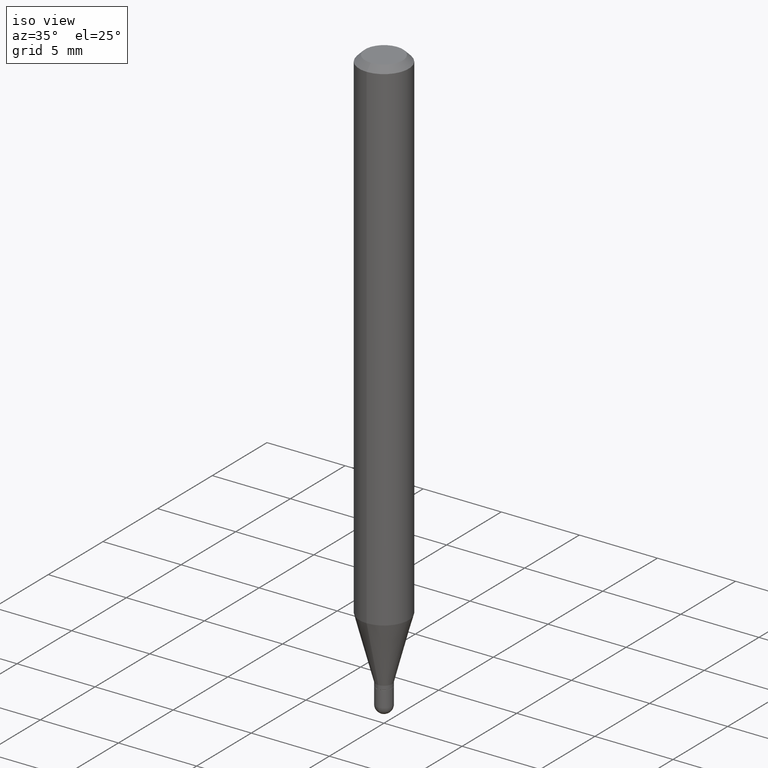
[diagram: clean part render]
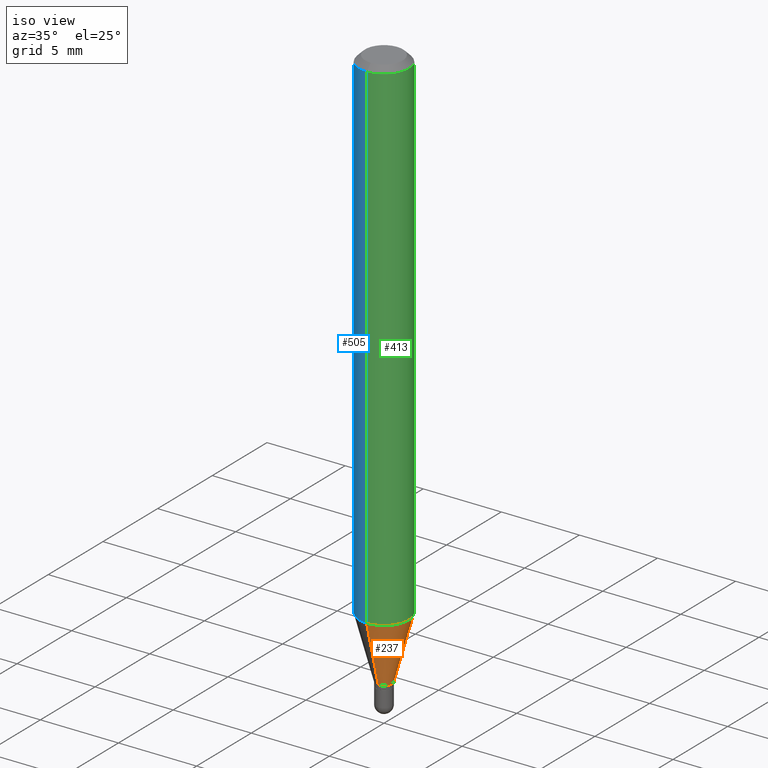
[diagram: same view with three faces highlighted in distinct colors, each labeled with its STEP entity id]
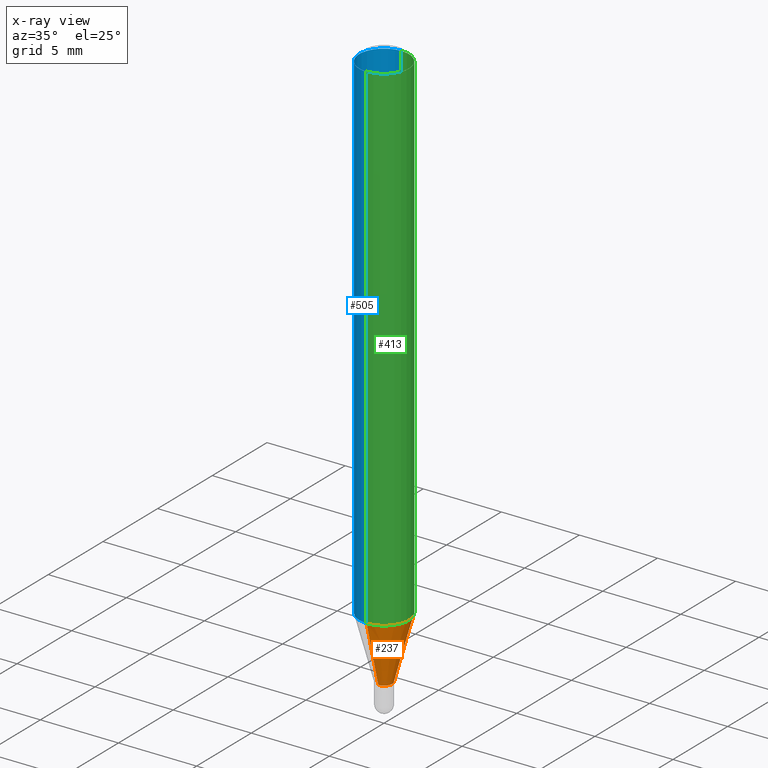
[diagram: x-ray of the same camera — body ghosted, the three highlighted faces saturated]
A machine part, iso view with three faces highlighted in distinct colors.
The next image is the same camera in x-ray (body ghosted, the three faces saturated) — at least one of them is partly hidden behind the body in this view.
Their STEP definitions:

[orange] entity #237 — the highlighted conical surface has half-angle 15 deg.
#3 = CARTESIAN_POINT ( 'NONE',  ( 3.491895928503127378E-29, -4.986169775435812878E-15, -1.428000000000000380 ) ) ;
#15 = VERTEX_POINT ( 'NONE', #297 ) ;
#43 = VECTOR ( 'NONE', #243, 39.37007874015748854 ) ;
#63 = EDGE_CURVE ( 'NONE', #15, #440, #329, .T. ) ;
#66 = EDGE_CURVE ( 'NONE', #96, #440, #439, .T. ) ;
#73 = CARTESIAN_POINT ( 'NONE',  ( 4.440892098500933817E-16, 0.06249999999999554523, -1.271253866082108219 ) ) ;
#96 = VERTEX_POINT ( 'NONE', #421 ) ;
#117 = CARTESIAN_POINT ( 'NONE',  ( 3.491895928503127378E-29, -4.986169775435812878E-15, -1.428000000000000380 ) ) ;
#124 = EDGE_LOOP ( 'NONE', ( #187, #269, #454, #361 ) ) ;
#142 = DIRECTION ( 'NONE',  ( 1.839019923739601499E-15, 0.2588190451025251249, 0.9659258262890670910 ) ) ;
#161 = VECTOR ( 'NONE', #142, 39.37007874015748854 ) ;
#184 = DIRECTION ( 'NONE',  ( -6.982962677686265133E-15, -1.000000000000000000, 0.000000000000000000 ) ) ;
#187 = ORIENTED_EDGE ( 'NONE', *, *, #253, .T. ) ;
#188 = AXIS2_PLACEMENT_3D ( 'NONE', #117, #429, #184 ) ;
#196 = CIRCLE ( 'NONE', #188, 0.02049999999999994188 ) ;
#226 = DIRECTION ( 'NONE',  ( -6.982962677686265133E-15, -1.000000000000000000, 0.000000000000000000 ) ) ;
#237 = ADVANCED_FACE ( 'NONE', ( #311 ), #277, .T. ) ;
#243 = DIRECTION ( 'NONE',  ( -1.807323732225331323E-15, -0.2588190451025183525, 0.9659258262890689783 ) ) ;
#253 = EDGE_CURVE ( 'NONE', #399, #15, #196, .T. ) ;
#266 = CARTESIAN_POINT ( 'NONE',  ( 3.108603780858524762E-29, -4.438856865521379751E-15, -1.271253866082107997 ) ) ;
#269 = ORIENTED_EDGE ( 'NONE', *, *, #63, .T. ) ;
#277 = CONICAL_SURFACE ( 'NONE', #455, 0.02049999999999994188, 0.2617993877991504625 ) ;
#295 = AXIS2_PLACEMENT_3D ( 'NONE', #266, #461, #468 ) ;
#297 = CARTESIAN_POINT ( 'NONE',  ( 2.948752353404744289E-16, 0.02049999999999495628, -1.428000000000000380 ) ) ;
#311 = FACE_OUTER_BOUND ( 'NONE', #124, .T. ) ;
#312 = CARTESIAN_POINT ( 'NONE',  ( -1.431507348925331187E-16, -0.02050000000000492748, -1.428000000000000380 ) ) ;
#317 = LINE ( 'NONE', #312, #43 ) ;
#329 = LINE ( 'NONE', #493, #161 ) ;
#361 = ORIENTED_EDGE ( 'NONE', *, *, #446, .F. ) ;
#399 = VERTEX_POINT ( 'NONE', #463 ) ;
#421 = CARTESIAN_POINT ( 'NONE',  ( -4.364351673553607559E-16, -0.06250000000000445477, -1.271253866082107775 ) ) ;
#429 = DIRECTION ( 'NONE',  ( -2.445305272061013346E-29, 3.491715529016674512E-15, 1.000000000000000000 ) ) ;
#439 = CIRCLE ( 'NONE', #295, 0.06250000000000000000 ) ;
#440 = VERTEX_POINT ( 'NONE', #73 ) ;
#442 = DIRECTION ( 'NONE',  ( -2.445305272061013346E-29, 3.491715529016674512E-15, 1.000000000000000000 ) ) ;
#446 = EDGE_CURVE ( 'NONE', #399, #96, #317, .T. ) ;
#454 = ORIENTED_EDGE ( 'NONE', *, *, #66, .F. ) ;
#455 = AXIS2_PLACEMENT_3D ( 'NONE', #3, #442, #226 ) ;
#461 = DIRECTION ( 'NONE',  ( -2.445305272061013346E-29, 3.491715529016674512E-15, 1.000000000000000000 ) ) ;
#463 = CARTESIAN_POINT ( 'NONE',  ( -1.431507348925331187E-16, -0.02050000000000492748, -1.428000000000000380 ) ) ;
#468 = DIRECTION ( 'NONE',  ( -6.982962677686265922E-15, -1.000000000000000000, 4.370956789862821150E-15 ) ) ;
#493 = CARTESIAN_POINT ( 'NONE',  ( 1.456612608308550076E-16, 0.02049999999999495628, -1.428000000000000380 ) ) ;

[blue] entity #505 — the highlighted cylindrical surface (edge-blend (fillet) strip) has radius 1.5875 mm, axis along (-0, 0, 1).
#11 = EDGE_CURVE ( 'NONE', #254, #180, #80, .T. ) ;
#21 = CARTESIAN_POINT ( 'NONE',  ( -4.364351673553912750E-16, -0.06250000000000005551, -0.01500000000000011047 ) ) ;
#23 = ORIENTED_EDGE ( 'NONE', *, *, #11, .F. ) ;
#33 = LINE ( 'NONE', #388, #453 ) ;
#35 = EDGE_CURVE ( 'NONE', #440, #254, #228, .T. ) ;
#57 = DIRECTION ( 'NONE',  ( -6.982962677686265922E-15, -1.000000000000000000, 3.483106191921935554E-15 ) ) ;
#59 = VECTOR ( 'NONE', #367, 39.37007874015748143 ) ;
#73 = CARTESIAN_POINT ( 'NONE',  ( 4.440892098500933817E-16, 0.06249999999999554523, -1.271253866082108219 ) ) ;
#74 = DIRECTION ( 'NONE',  ( -2.445305272061013346E-29, 3.491715529016674512E-15, 1.000000000000000000 ) ) ;
#80 = CIRCLE ( 'NONE', #343, 0.06250000000000000000 ) ;
#84 = ORIENTED_EDGE ( 'NONE', *, *, #182, .T. ) ;
#96 = VERTEX_POINT ( 'NONE', #421 ) ;
#104 = EDGE_LOOP ( 'NONE', ( #379, #84, #191, #23 ) ) ;
#132 = DIRECTION ( 'NONE',  ( -6.982962677686265922E-15, -1.000000000000000000, 4.370956789862821150E-15 ) ) ;
#180 = VERTEX_POINT ( 'NONE', #21 ) ;
#182 = EDGE_CURVE ( 'NONE', #440, #96, #437, .T. ) ;
#191 = ORIENTED_EDGE ( 'NONE', *, *, #395, .T. ) ;
#202 = FACE_OUTER_BOUND ( 'NONE', #104, .T. ) ;
#228 = LINE ( 'NONE', #416, #59 ) ;
#232 = DIRECTION ( 'NONE',  ( -2.445305272061013346E-29, 3.491715529016674512E-15, 1.000000000000000000 ) ) ;
#246 = DIRECTION ( 'NONE',  ( -6.982962677686265922E-15, -1.000000000000000000, 3.491715529016674512E-15 ) ) ;
#254 = VERTEX_POINT ( 'NONE', #263 ) ;
#263 = CARTESIAN_POINT ( 'NONE',  ( 4.440892098500938748E-16, 0.06249999999999995143, -0.01500000000000054588 ) ) ;
#304 = CYLINDRICAL_SURFACE ( 'NONE', #351, 0.06250000000000000000 ) ;
#343 = AXIS2_PLACEMENT_3D ( 'NONE', #378, #232, #57 ) ;
#351 = AXIS2_PLACEMENT_3D ( 'NONE', #511, #74, #246 ) ;
#367 = DIRECTION ( 'NONE',  ( -2.445305272061013346E-29, 3.491715529016674906E-15, 1.000000000000000000 ) ) ;
#378 = CARTESIAN_POINT ( 'NONE',  ( 3.667957908091600190E-31, -5.237573293525126621E-17, -0.01500000000000032904 ) ) ;
#379 = ORIENTED_EDGE ( 'NONE', *, *, #35, .F. ) ;
#382 = AXIS2_PLACEMENT_3D ( 'NONE', #402, #444, #132 ) ;
#388 = CARTESIAN_POINT ( 'NONE',  ( -4.364351673553916201E-16, -0.06250000000000000000, 2.182322205635421570E-16 ) ) ;
#395 = EDGE_CURVE ( 'NONE', #96, #180, #33, .T. ) ;
#402 = CARTESIAN_POINT ( 'NONE',  ( 3.108603780858524762E-29, -4.438856865521379751E-15, -1.271253866082107997 ) ) ;
#416 = CARTESIAN_POINT ( 'NONE',  ( 4.440892098500625669E-16, 0.06250000000000000000, -2.182322205635421570E-16 ) ) ;
#421 = CARTESIAN_POINT ( 'NONE',  ( -4.364351673553607559E-16, -0.06250000000000445477, -1.271253866082107775 ) ) ;
#437 = CIRCLE ( 'NONE', #382, 0.06250000000000000000 ) ;
#440 = VERTEX_POINT ( 'NONE', #73 ) ;
#444 = DIRECTION ( 'NONE',  ( -2.445305272061013346E-29, 3.491715529016674512E-15, 1.000000000000000000 ) ) ;
#453 = VECTOR ( 'NONE', #472, 39.37007874015748143 ) ;
#472 = DIRECTION ( 'NONE',  ( -2.445305272061013346E-29, 3.491715529016674906E-15, 1.000000000000000000 ) ) ;
#505 = ADVANCED_FACE ( 'NONE', ( #202 ), #304, .T. ) ;
#511 = CARTESIAN_POINT ( 'NONE',  ( 0.000000000000000000, 0.000000000000000000, 0.000000000000000000 ) ) ;

[green] entity #413 — the highlighted cylindrical surface (edge-blend (fillet) strip) has radius 1.5875 mm, axis along (-0, 0, 1).
#21 = CARTESIAN_POINT ( 'NONE',  ( -4.364351673553912750E-16, -0.06250000000000005551, -0.01500000000000011047 ) ) ;
#33 = LINE ( 'NONE', #388, #453 ) ;
#35 = EDGE_CURVE ( 'NONE', #440, #254, #228, .T. ) ;
#40 = DIRECTION ( 'NONE',  ( -6.982962677686265922E-15, -1.000000000000000000, 3.483106191921935554E-15 ) ) ;
#59 = VECTOR ( 'NONE', #367, 39.37007874015748143 ) ;
#66 = EDGE_CURVE ( 'NONE', #96, #440, #439, .T. ) ;
#68 = CARTESIAN_POINT ( 'NONE',  ( 3.667957908091600190E-31, -5.237573293525126621E-17, -0.01500000000000032904 ) ) ;
#73 = CARTESIAN_POINT ( 'NONE',  ( 4.440892098500933817E-16, 0.06249999999999554523, -1.271253866082108219 ) ) ;
#94 = CIRCLE ( 'NONE', #327, 0.06250000000000000000 ) ;
#96 = VERTEX_POINT ( 'NONE', #421 ) ;
#107 = DIRECTION ( 'NONE',  ( -6.982962677686265922E-15, -1.000000000000000000, 3.491715529016674512E-15 ) ) ;
#155 = DIRECTION ( 'NONE',  ( -2.445305272061013346E-29, 3.491715529016674512E-15, 1.000000000000000000 ) ) ;
#173 = ORIENTED_EDGE ( 'NONE', *, *, #66, .T. ) ;
#180 = VERTEX_POINT ( 'NONE', #21 ) ;
#198 = CYLINDRICAL_SURFACE ( 'NONE', #447, 0.06250000000000000000 ) ;
#221 = ORIENTED_EDGE ( 'NONE', *, *, #35, .T. ) ;
#228 = LINE ( 'NONE', #416, #59 ) ;
#231 = ORIENTED_EDGE ( 'NONE', *, *, #477, .F. ) ;
#236 = DIRECTION ( 'NONE',  ( -2.445305272061013346E-29, 3.491715529016674512E-15, 1.000000000000000000 ) ) ;
#240 = FACE_OUTER_BOUND ( 'NONE', #420, .T. ) ;
#254 = VERTEX_POINT ( 'NONE', #263 ) ;
#263 = CARTESIAN_POINT ( 'NONE',  ( 4.440892098500938748E-16, 0.06249999999999995143, -0.01500000000000054588 ) ) ;
#266 = CARTESIAN_POINT ( 'NONE',  ( 3.108603780858524762E-29, -4.438856865521379751E-15, -1.271253866082107997 ) ) ;
#295 = AXIS2_PLACEMENT_3D ( 'NONE', #266, #461, #468 ) ;
#327 = AXIS2_PLACEMENT_3D ( 'NONE', #68, #236, #40 ) ;
#367 = DIRECTION ( 'NONE',  ( -2.445305272061013346E-29, 3.491715529016674906E-15, 1.000000000000000000 ) ) ;
#388 = CARTESIAN_POINT ( 'NONE',  ( -4.364351673553916201E-16, -0.06250000000000000000, 2.182322205635421570E-16 ) ) ;
#395 = EDGE_CURVE ( 'NONE', #96, #180, #33, .T. ) ;
#413 = ADVANCED_FACE ( 'NONE', ( #240 ), #198, .T. ) ;
#416 = CARTESIAN_POINT ( 'NONE',  ( 4.440892098500625669E-16, 0.06250000000000000000, -2.182322205635421570E-16 ) ) ;
#420 = EDGE_LOOP ( 'NONE', ( #173, #221, #231, #500 ) ) ;
#421 = CARTESIAN_POINT ( 'NONE',  ( -4.364351673553607559E-16, -0.06250000000000445477, -1.271253866082107775 ) ) ;
#439 = CIRCLE ( 'NONE', #295, 0.06250000000000000000 ) ;
#440 = VERTEX_POINT ( 'NONE', #73 ) ;
#447 = AXIS2_PLACEMENT_3D ( 'NONE', #503, #155, #107 ) ;
#453 = VECTOR ( 'NONE', #472, 39.37007874015748143 ) ;
#461 = DIRECTION ( 'NONE',  ( -2.445305272061013346E-29, 3.491715529016674512E-15, 1.000000000000000000 ) ) ;
#468 = DIRECTION ( 'NONE',  ( -6.982962677686265922E-15, -1.000000000000000000, 4.370956789862821150E-15 ) ) ;
#472 = DIRECTION ( 'NONE',  ( -2.445305272061013346E-29, 3.491715529016674906E-15, 1.000000000000000000 ) ) ;
#477 = EDGE_CURVE ( 'NONE', #180, #254, #94, .T. ) ;
#500 = ORIENTED_EDGE ( 'NONE', *, *, #395, .F. ) ;
#503 = CARTESIAN_POINT ( 'NONE',  ( 0.000000000000000000, 0.000000000000000000, 0.000000000000000000 ) ) ;